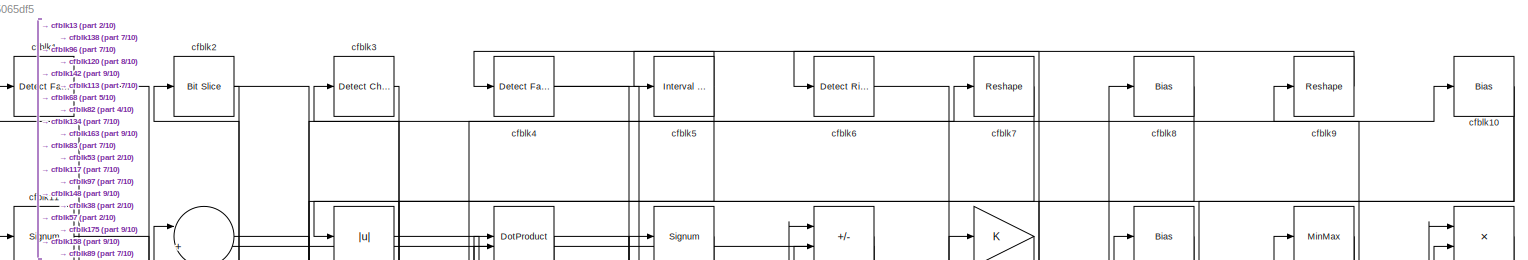
[diagram: root canvas - part 1/10, full width, top band]
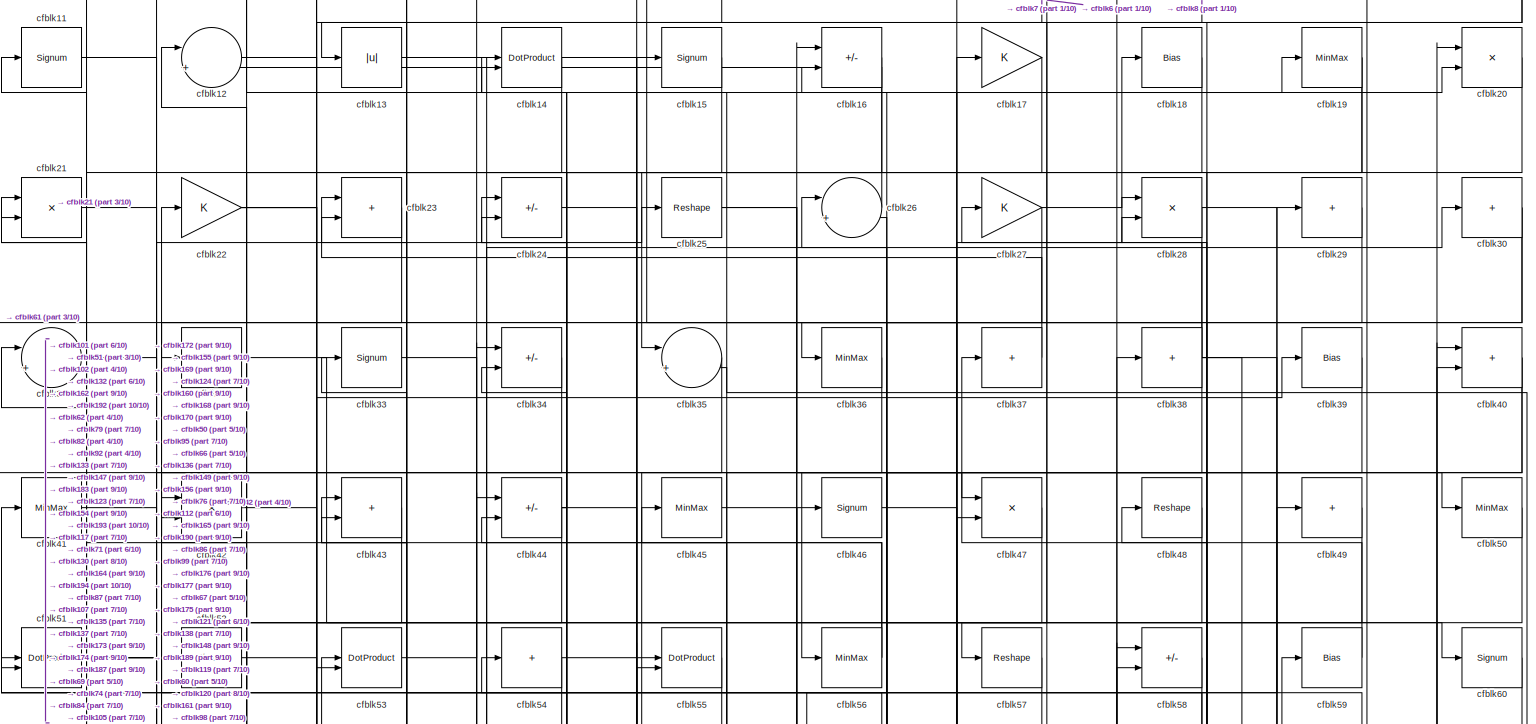
[diagram: root canvas - part 2/10, full width, top band]
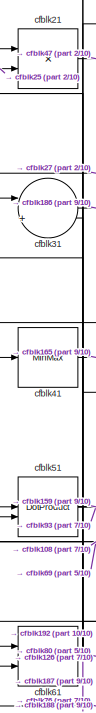
[diagram: root canvas - part 3/10, top left region]
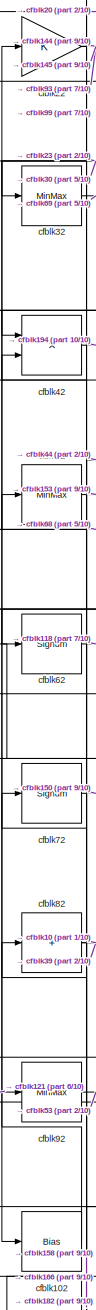
[diagram: root canvas - part 4/10, top left region]
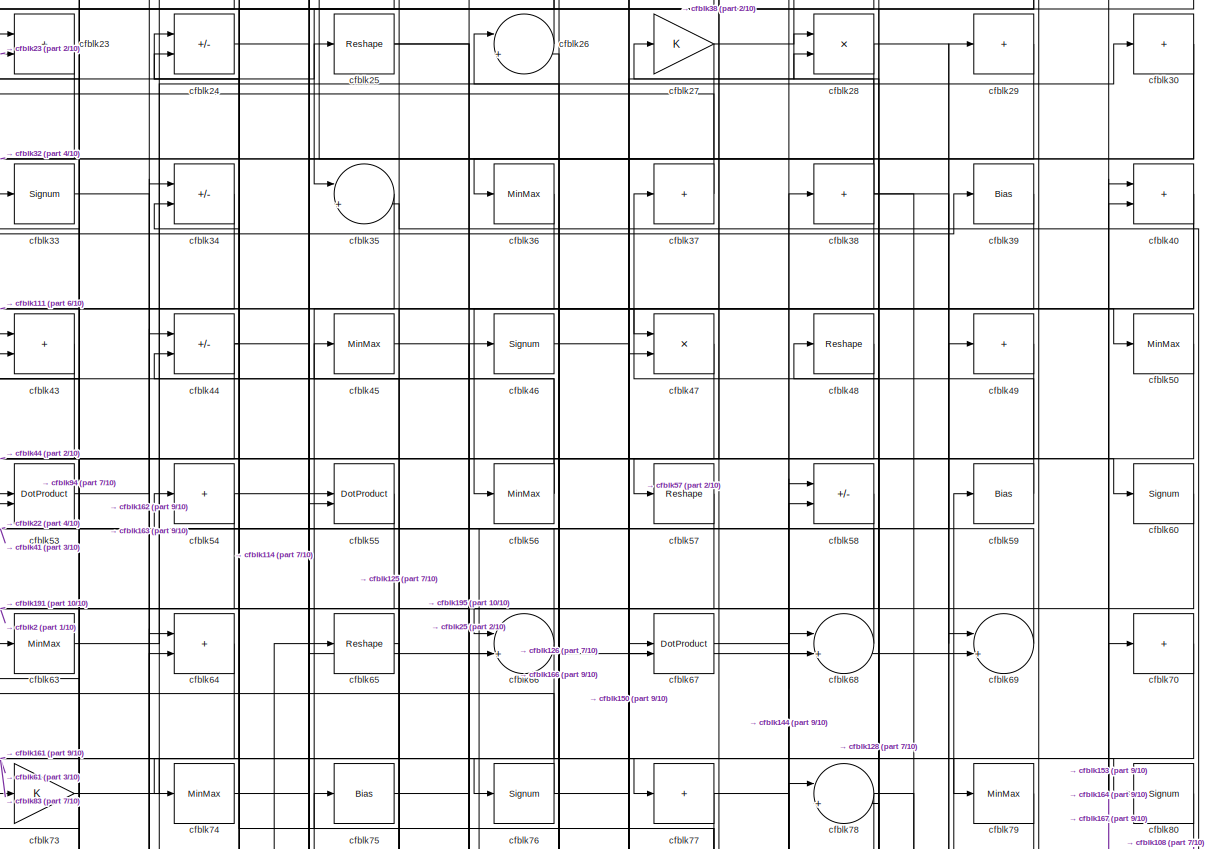
[diagram: root canvas - part 5/10, full width, top band]
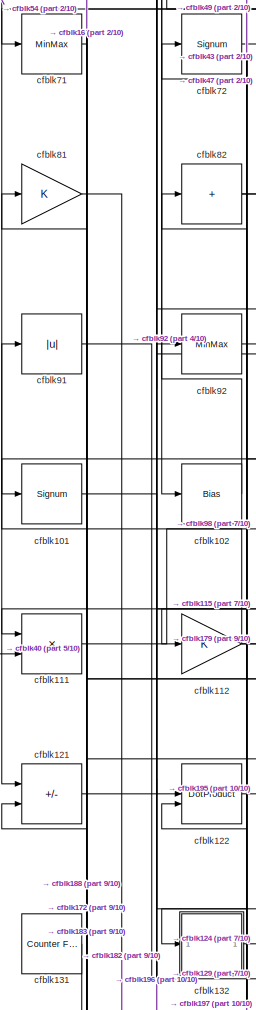
[diagram: root canvas - part 6/10, middle left region]
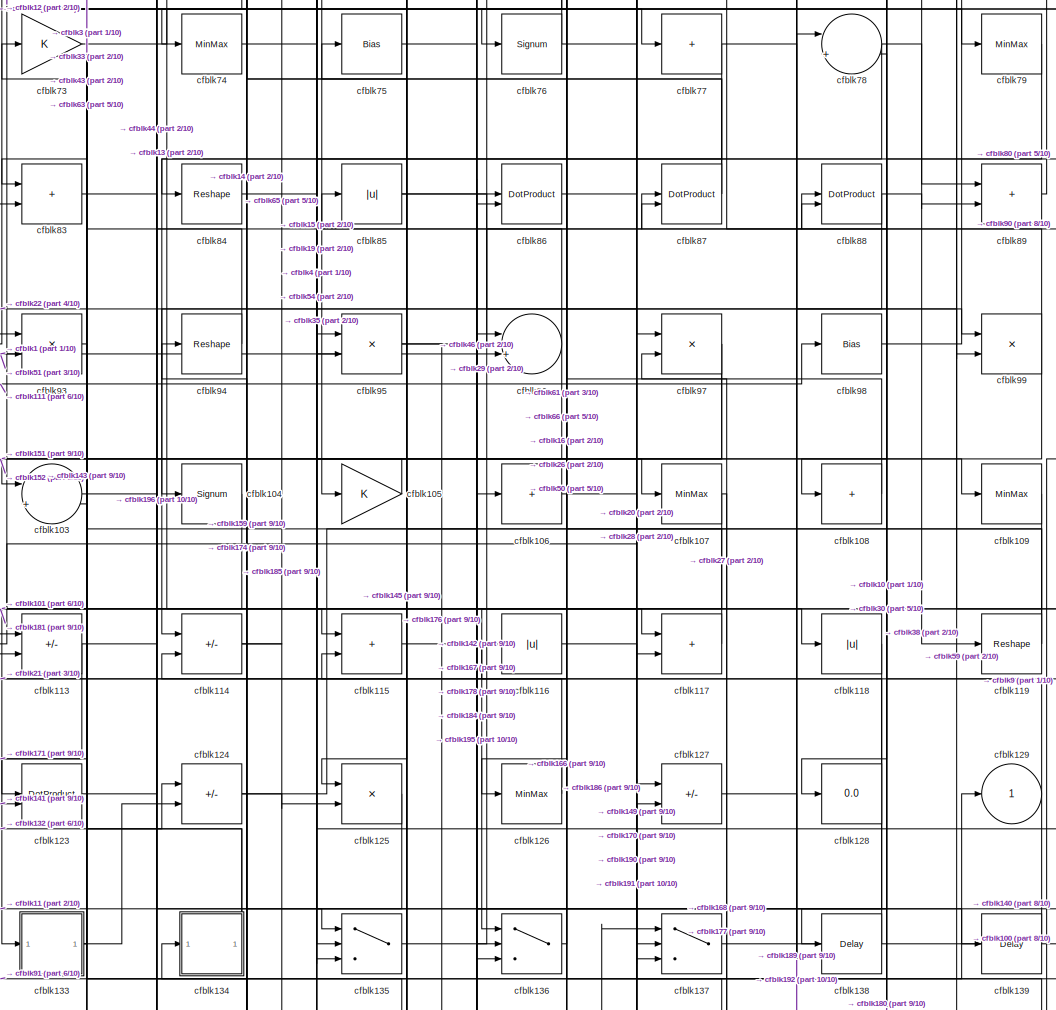
[diagram: root canvas - part 7/10, central region]
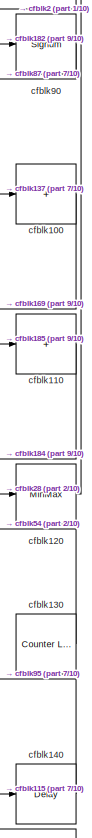
[diagram: root canvas - part 8/10, middle right region]
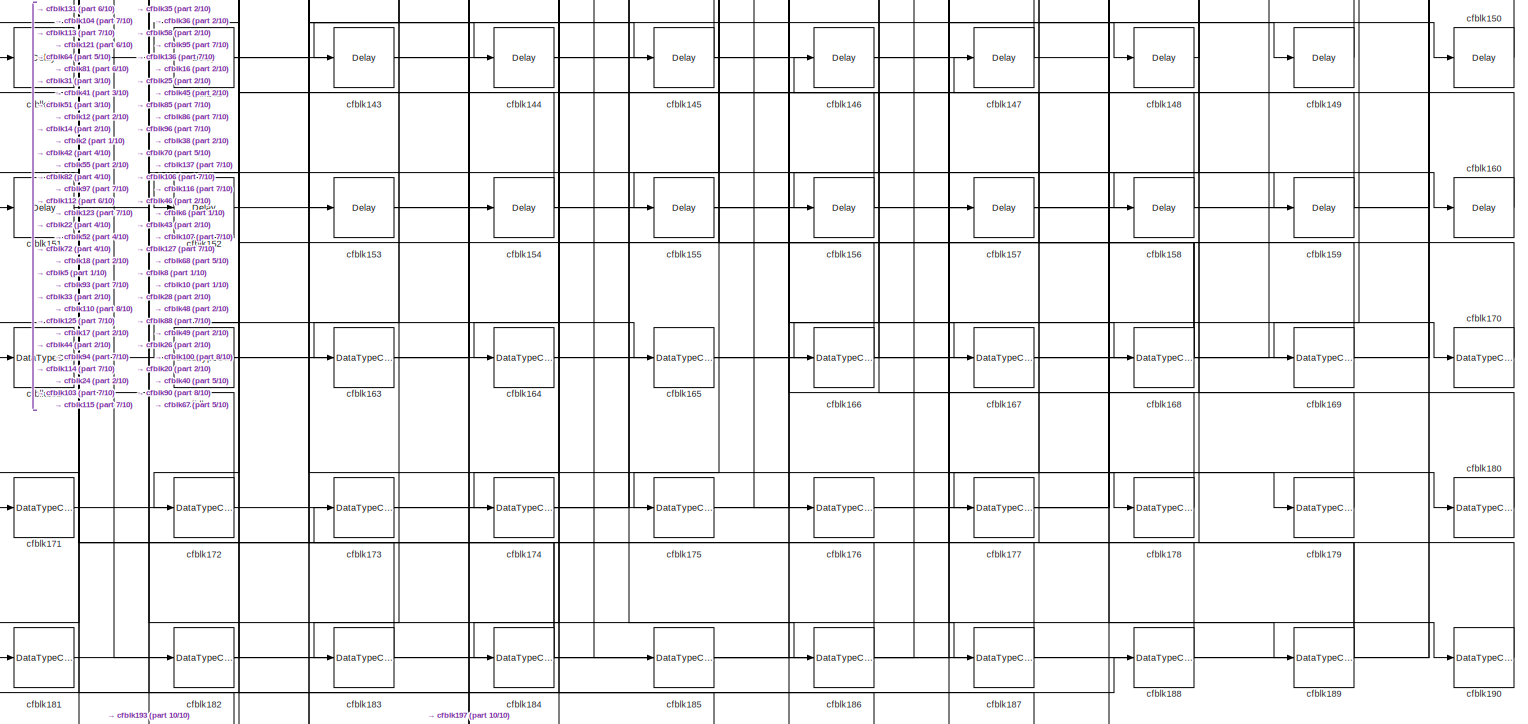
[diagram: root canvas - part 9/10, full width, bottom band]
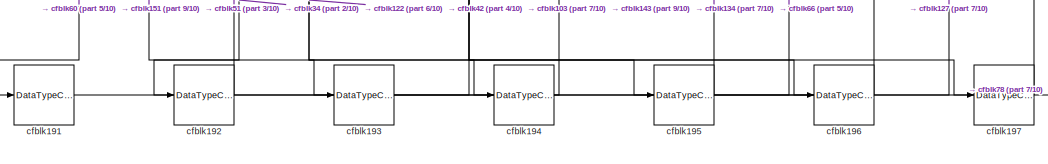
[diagram: root canvas - part 10/10, bottom center region]
MODEL slx_2ca6a5065df5
KIND model
CONFIG AbsTol = auto
CONFIG EnableMultiTasking = off
CONFIG FixedStep = auto
CONFIG MaxStep = auto
CONFIG MinStep = auto
CONFIG RelTol = 1e-3
CONFIG SampleTimeConstraint = Unconstrained
CONFIG SolverName = VariableStepAuto
CONFIG StartTime = 0.0
CONFIG StopTime = 10.0
BLOCK [Reference] cfblk1  REF=hdlsllib/Logic and Bit
Operations/Detect Fall
Negative
  SourceBlock = hdlsllib/Logic and Bit\nOperations/Detect Fall\nNegative
  SourceType = Detect Fall Negative
BLOCK [Bias] cfblk10
  Bias = 0.0
  SaturateOnIntegerOverflow = off
BLOCK [Sum] cfblk100
  IconShape = rectangular
  Inputs = +
BLOCK [Signum] cfblk101
BLOCK [Bias] cfblk102
  Bias = 0.0
  SaturateOnIntegerOverflow = off
BLOCK [Sum] cfblk103
  Inputs = |++
BLOCK [Signum] cfblk104
BLOCK [Gain] cfblk105
BLOCK [Sum] cfblk106
  IconShape = rectangular
  Inputs = +
BLOCK [MinMax] cfblk107
BLOCK [Sum] cfblk108
  IconShape = rectangular
  Inputs = +
BLOCK [MinMax] cfblk109
BLOCK [Signum] cfblk11
BLOCK [Sum] cfblk110
  IconShape = rectangular
  Inputs = +
BLOCK [Product] cfblk111
  Inputs = */
  RndMeth = Zero
  SaturateOnIntegerOverflow = on
BLOCK [Gain] cfblk112
BLOCK [Sum] cfblk113
  IconShape = rectangular
  Inputs = +-
BLOCK [Sum] cfblk114
  IconShape = rectangular
  Inputs = +-
BLOCK [Sum] cfblk115
  IconShape = rectangular
BLOCK [Abs] cfblk116
  SaturateOnIntegerOverflow = off
BLOCK [Sum] cfblk117
  IconShape = rectangular
BLOCK [Abs] cfblk118
  SaturateOnIntegerOverflow = off
BLOCK [Reshape] cfblk119
BLOCK [Sum] cfblk12
  Inputs = |++
BLOCK [MinMax] cfblk120
BLOCK [Sum] cfblk121
  IconShape = rectangular
  Inputs = +-
BLOCK [DotProduct] cfblk122
  OutDataTypeStr = Inherit: Inherit via internal rule
BLOCK [DotProduct] cfblk123
  OutDataTypeStr = Inherit: Inherit via internal rule
BLOCK [Sum] cfblk124
  IconShape = rectangular
  Inputs = +-
BLOCK [Product] cfblk125
  Inputs = */
  RndMeth = Zero
  SaturateOnIntegerOverflow = on
BLOCK [MinMax] cfblk126
BLOCK [Sum] cfblk127
  IconShape = rectangular
  Inputs = +-
BLOCK [Display] cfblk128
  Decimation = 1
BLOCK [Outport] cfblk129
  VectorParamsAs1DForOutWhenUnconnected = off
BLOCK [Abs] cfblk13
  SaturateOnIntegerOverflow = off
BLOCK [Reference] cfblk130  REF=hdlsllib/Sources/Counter
Limited
  SourceBlock = hdlsllib/Sources/Counter\nLimited
  SourceType = Counter Limited
BLOCK [Reference] cfblk131  REF=hdlsllib/Sources/Counter
Free-Running
  SourceBlock = hdlsllib/Sources/Counter\nFree-Running
  SourceType = Counter Free-Running
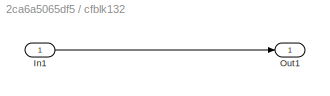
BLOCK [SubSystem] cfblk132
  LibrarySourceBlock = hdlsllib/Ports &\nSubsystems/Subsystem
BLOCK [Inport] cfblk132/In1
BLOCK [Outport] cfblk132/Out1
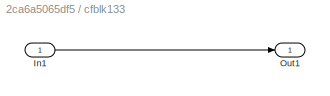
BLOCK [SubSystem] cfblk133
  LibrarySourceBlock = hdlsllib/Ports &\nSubsystems/Subsystem
BLOCK [Inport] cfblk133/In1
BLOCK [Outport] cfblk133/Out1
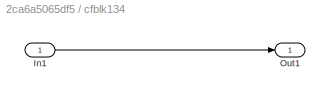
BLOCK [SubSystem] cfblk134
  LibrarySourceBlock = hdlsllib/Ports &\nSubsystems/Subsystem
BLOCK [Inport] cfblk134/In1
BLOCK [Outport] cfblk134/Out1
BLOCK [Switch] cfblk135
  InputSameDT = off
  SaturateOnIntegerOverflow = off
BLOCK [Switch] cfblk136
  InputSameDT = off
  SaturateOnIntegerOverflow = off
BLOCK [Switch] cfblk137
  InputSameDT = off
  SaturateOnIntegerOverflow = off
BLOCK [Delay] cfblk138
  InputPortMap = u0
  SampleTime = 1
BLOCK [Delay] cfblk139
  InputPortMap = u0
  SampleTime = 1
BLOCK [DotProduct] cfblk14
  OutDataTypeStr = Inherit: Inherit via internal rule
BLOCK [Delay] cfblk140
  InputPortMap = u0
  SampleTime = 1
BLOCK [Delay] cfblk141
  InputPortMap = u0
  SampleTime = 1
BLOCK [Delay] cfblk142
  InputPortMap = u0
  SampleTime = 1
BLOCK [Delay] cfblk143
  InputPortMap = u0
  SampleTime = 1
BLOCK [Delay] cfblk144
  InputPortMap = u0
  SampleTime = 1
BLOCK [Delay] cfblk145
  InputPortMap = u0
  SampleTime = 1
BLOCK [Delay] cfblk146
  InputPortMap = u0
  SampleTime = 1
BLOCK [Delay] cfblk147
  InputPortMap = u0
  SampleTime = 1
BLOCK [Delay] cfblk148
  InputPortMap = u0
  SampleTime = 1
BLOCK [Delay] cfblk149
  InputPortMap = u0
  SampleTime = 1
BLOCK [Signum] cfblk15
BLOCK [Delay] cfblk150
  InputPortMap = u0
  SampleTime = 1
BLOCK [Delay] cfblk151
  InputPortMap = u0
  SampleTime = 1
BLOCK [Delay] cfblk152
  InputPortMap = u0
  SampleTime = 1
BLOCK [Delay] cfblk153
  InputPortMap = u0
  SampleTime = 1
BLOCK [Delay] cfblk154
  InputPortMap = u0
  SampleTime = 1
BLOCK [Delay] cfblk155
  InputPortMap = u0
  SampleTime = 1
BLOCK [Delay] cfblk156
  InputPortMap = u0
  SampleTime = 1
BLOCK [Delay] cfblk157
  InputPortMap = u0
  SampleTime = 1
BLOCK [Delay] cfblk158
  InputPortMap = u0
  SampleTime = 1
BLOCK [Delay] cfblk159
  InputPortMap = u0
  SampleTime = 1
BLOCK [Sum] cfblk16
  IconShape = rectangular
  Inputs = +-
BLOCK [Delay] cfblk160
  InputPortMap = u0
  SampleTime = 1
BLOCK [DataTypeConversion] cfblk161
  OutDataTypeStr = uint8
  RndMeth = Floor
  SaturateOnIntegerOverflow = off
BLOCK [DataTypeConversion] cfblk162
  OutDataTypeStr = uint8
  RndMeth = Floor
  SaturateOnIntegerOverflow = off
BLOCK [DataTypeConversion] cfblk163
  OutDataTypeStr = uint8
  RndMeth = Floor
  SaturateOnIntegerOverflow = off
BLOCK [DataTypeConversion] cfblk164
  OutDataTypeStr = uint8
  RndMeth = Floor
  SaturateOnIntegerOverflow = off
BLOCK [DataTypeConversion] cfblk165
  OutDataTypeStr = uint8
  RndMeth = Floor
  SaturateOnIntegerOverflow = off
BLOCK [DataTypeConversion] cfblk166
  RndMeth = Floor
  SaturateOnIntegerOverflow = off
BLOCK [DataTypeConversion] cfblk167
  OutDataTypeStr = uint8
  RndMeth = Floor
  SaturateOnIntegerOverflow = off
BLOCK [DataTypeConversion] cfblk168
  RndMeth = Floor
  SaturateOnIntegerOverflow = off
BLOCK [DataTypeConversion] cfblk169
  OutDataTypeStr = uint8
  RndMeth = Floor
  SaturateOnIntegerOverflow = off
BLOCK [Gain] cfblk17
BLOCK [DataTypeConversion] cfblk170
  OutDataTypeStr = uint8
  RndMeth = Floor
  SaturateOnIntegerOverflow = off
BLOCK [DataTypeConversion] cfblk171
  OutDataTypeStr = uint8
  RndMeth = Floor
  SaturateOnIntegerOverflow = off
BLOCK [DataTypeConversion] cfblk172
  OutDataTypeStr = uint8
  RndMeth = Floor
  SaturateOnIntegerOverflow = off
BLOCK [DataTypeConversion] cfblk173
  OutDataTypeStr = uint8
  RndMeth = Floor
  SaturateOnIntegerOverflow = off
BLOCK [DataTypeConversion] cfblk174
  OutDataTypeStr = uint8
  RndMeth = Floor
  SaturateOnIntegerOverflow = off
BLOCK [DataTypeConversion] cfblk175
  OutDataTypeStr = uint8
  RndMeth = Floor
  SaturateOnIntegerOverflow = off
BLOCK [DataTypeConversion] cfblk176
  OutDataTypeStr = uint8
  RndMeth = Floor
  SaturateOnIntegerOverflow = off
BLOCK [DataTypeConversion] cfblk177
  OutDataTypeStr = uint8
  RndMeth = Floor
  SaturateOnIntegerOverflow = off
BLOCK [DataTypeConversion] cfblk178
  OutDataTypeStr = uint8
  RndMeth = Floor
  SaturateOnIntegerOverflow = off
BLOCK [DataTypeConversion] cfblk179
  OutDataTypeStr = uint8
  RndMeth = Floor
  SaturateOnIntegerOverflow = off
BLOCK [Bias] cfblk18
  Bias = 0.0
  SaturateOnIntegerOverflow = off
BLOCK [DataTypeConversion] cfblk180
  OutDataTypeStr = uint8
  RndMeth = Floor
  SaturateOnIntegerOverflow = off
BLOCK [DataTypeConversion] cfblk181
  OutDataTypeStr = uint8
  RndMeth = Floor
  SaturateOnIntegerOverflow = off
BLOCK [DataTypeConversion] cfblk182
  RndMeth = Floor
  SaturateOnIntegerOverflow = off
BLOCK [DataTypeConversion] cfblk183
  OutDataTypeStr = uint8
  RndMeth = Floor
  SaturateOnIntegerOverflow = off
BLOCK [DataTypeConversion] cfblk184
  RndMeth = Floor
  SaturateOnIntegerOverflow = off
BLOCK [DataTypeConversion] cfblk185
  OutDataTypeStr = uint8
  RndMeth = Floor
  SaturateOnIntegerOverflow = off
BLOCK [DataTypeConversion] cfblk186
  RndMeth = Floor
  SaturateOnIntegerOverflow = off
BLOCK [DataTypeConversion] cfblk187
  OutDataTypeStr = uint8
  RndMeth = Floor
  SaturateOnIntegerOverflow = off
BLOCK [DataTypeConversion] cfblk188
  OutDataTypeStr = uint8
  RndMeth = Floor
  SaturateOnIntegerOverflow = off
BLOCK [DataTypeConversion] cfblk189
  RndMeth = Floor
  SaturateOnIntegerOverflow = off
BLOCK [MinMax] cfblk19
BLOCK [DataTypeConversion] cfblk190
  OutDataTypeStr = uint8
  RndMeth = Floor
  SaturateOnIntegerOverflow = off
BLOCK [DataTypeConversion] cfblk191
  OutDataTypeStr = uint8
  RndMeth = Floor
  SaturateOnIntegerOverflow = off
BLOCK [DataTypeConversion] cfblk192
  RndMeth = Floor
  SaturateOnIntegerOverflow = off
BLOCK [DataTypeConversion] cfblk193
  OutDataTypeStr = uint8
  RndMeth = Floor
  SaturateOnIntegerOverflow = off
BLOCK [DataTypeConversion] cfblk194
  OutDataTypeStr = uint8
  RndMeth = Floor
  SaturateOnIntegerOverflow = off
BLOCK [DataTypeConversion] cfblk195
  RndMeth = Floor
  SaturateOnIntegerOverflow = off
BLOCK [DataTypeConversion] cfblk196
  OutDataTypeStr = uint8
  RndMeth = Floor
  SaturateOnIntegerOverflow = off
BLOCK [DataTypeConversion] cfblk197
  OutDataTypeStr = uint8
  RndMeth = Floor
  SaturateOnIntegerOverflow = off
BLOCK [Reference] cfblk2  REF=hdlsllib/Logic and Bit
Operations/Bit Slice
  SourceBlock = hdlsllib/Logic and Bit\nOperations/Bit Slice
  SourceType = Bit Slice
BLOCK [Product] cfblk20
  Inputs = */
  RndMeth = Zero
  SaturateOnIntegerOverflow = on
BLOCK [Product] cfblk21
  Inputs = */
  RndMeth = Zero
  SaturateOnIntegerOverflow = on
BLOCK [Gain] cfblk22
BLOCK [Sum] cfblk23
  IconShape = rectangular
BLOCK [Sum] cfblk24
  IconShape = rectangular
  Inputs = +-
BLOCK [Reshape] cfblk25
BLOCK [Sum] cfblk26
  Inputs = |++
BLOCK [Gain] cfblk27
BLOCK [Product] cfblk28
  Inputs = */
  RndMeth = Zero
  SaturateOnIntegerOverflow = on
BLOCK [Sum] cfblk29
  IconShape = rectangular
  Inputs = +
BLOCK [Reference] cfblk3  REF=simulink/Logic and Bit
Operations/Detect
Change
  LibrarySourceBlock = hdlsllib/Logic and Bit\nOperations/Detect\nChange
  SourceBlock = simulink/Logic and Bit\nOperations/Detect\nChange
  SourceType = Detect Change
BLOCK [Sum] cfblk30
  IconShape = rectangular
  Inputs = +
BLOCK [Sum] cfblk31
  Inputs = |++
BLOCK [MinMax] cfblk32
BLOCK [Signum] cfblk33
BLOCK [Sum] cfblk34
  IconShape = rectangular
  Inputs = +-
BLOCK [Sum] cfblk35
  Inputs = |++
BLOCK [MinMax] cfblk36
BLOCK [Sum] cfblk37
  IconShape = rectangular
  Inputs = +
BLOCK [Sum] cfblk38
  IconShape = rectangular
  Inputs = +
BLOCK [Bias] cfblk39
  Bias = 0.0
  SaturateOnIntegerOverflow = off
BLOCK [Reference] cfblk4  REF=hdlsllib/Logic and Bit
Operations/Detect Fall
Negative
  SourceBlock = hdlsllib/Logic and Bit\nOperations/Detect Fall\nNegative
  SourceType = Detect Fall Negative
BLOCK [Sum] cfblk40
  IconShape = rectangular
BLOCK [MinMax] cfblk41
BLOCK [Product] cfblk42
  Inputs = */
  RndMeth = Zero
  SaturateOnIntegerOverflow = on
BLOCK [Sum] cfblk43
  IconShape = rectangular
BLOCK [Sum] cfblk44
  IconShape = rectangular
  Inputs = +-
BLOCK [MinMax] cfblk45
BLOCK [Signum] cfblk46
BLOCK [Product] cfblk47
  Inputs = */
  RndMeth = Zero
  SaturateOnIntegerOverflow = on
BLOCK [Reshape] cfblk48
BLOCK [Sum] cfblk49
  IconShape = rectangular
  Inputs = +
BLOCK [Reference] cfblk5  REF=hdlsllib/Logic and Bit
Operations/Interval Test
  SourceBlock = hdlsllib/Logic and Bit\nOperations/Interval Test
  SourceType = Interval Test
BLOCK [MinMax] cfblk50
BLOCK [DotProduct] cfblk51
  OutDataTypeStr = Inherit: Inherit via internal rule
BLOCK [MinMax] cfblk52
BLOCK [DotProduct] cfblk53
  OutDataTypeStr = Inherit: Inherit via internal rule
BLOCK [Sum] cfblk54
  IconShape = rectangular
  Inputs = +
BLOCK [DotProduct] cfblk55
  OutDataTypeStr = Inherit: Inherit via internal rule
BLOCK [MinMax] cfblk56
BLOCK [Reshape] cfblk57
BLOCK [Sum] cfblk58
  IconShape = rectangular
  Inputs = +-
BLOCK [Bias] cfblk59
  Bias = 0.0
  SaturateOnIntegerOverflow = off
BLOCK [Reference] cfblk6  REF=hdlsllib/Logic and Bit
Operations/Detect Rise
Positive
  SourceBlock = hdlsllib/Logic and Bit\nOperations/Detect Rise\nPositive
  SourceType = Detect Rise Positive
BLOCK [Signum] cfblk60
BLOCK [Product] cfblk61
  Inputs = */
  RndMeth = Zero
  SaturateOnIntegerOverflow = on
BLOCK [Signum] cfblk62
BLOCK [MinMax] cfblk63
BLOCK [Sum] cfblk64
  IconShape = rectangular
BLOCK [Reshape] cfblk65
BLOCK [Sum] cfblk66
  Inputs = |++
BLOCK [DotProduct] cfblk67
  OutDataTypeStr = Inherit: Inherit via internal rule
BLOCK [Sum] cfblk68
  Inputs = |++
BLOCK [Sum] cfblk69
  Inputs = |++
BLOCK [Reshape] cfblk7
BLOCK [Sum] cfblk70
  IconShape = rectangular
  Inputs = +
BLOCK [MinMax] cfblk71
BLOCK [Signum] cfblk72
BLOCK [Gain] cfblk73
BLOCK [MinMax] cfblk74
BLOCK [Bias] cfblk75
  Bias = 0.0
  SaturateOnIntegerOverflow = off
BLOCK [Signum] cfblk76
BLOCK [Sum] cfblk77
  IconShape = rectangular
  Inputs = +
BLOCK [Sum] cfblk78
  Inputs = |++
BLOCK [MinMax] cfblk79
BLOCK [Bias] cfblk8
  Bias = 0.0
  SaturateOnIntegerOverflow = off
BLOCK [Signum] cfblk80
BLOCK [Gain] cfblk81
BLOCK [Sum] cfblk82
  IconShape = rectangular
  Inputs = +
BLOCK [Sum] cfblk83
  IconShape = rectangular
BLOCK [Reshape] cfblk84
BLOCK [Abs] cfblk85
  SaturateOnIntegerOverflow = off
BLOCK [DotProduct] cfblk86
  OutDataTypeStr = Inherit: Inherit via internal rule
BLOCK [DotProduct] cfblk87
  OutDataTypeStr = Inherit: Inherit via internal rule
BLOCK [DotProduct] cfblk88
  OutDataTypeStr = Inherit: Inherit via internal rule
BLOCK [Sum] cfblk89
  IconShape = rectangular
BLOCK [Reshape] cfblk9
BLOCK [Signum] cfblk90
BLOCK [Abs] cfblk91
  SaturateOnIntegerOverflow = off
BLOCK [MinMax] cfblk92
BLOCK [Product] cfblk93
  Inputs = */
  RndMeth = Zero
  SaturateOnIntegerOverflow = on
BLOCK [Reshape] cfblk94
BLOCK [Product] cfblk95
  Inputs = */
  RndMeth = Zero
  SaturateOnIntegerOverflow = on
BLOCK [Sum] cfblk96
  Inputs = |++
BLOCK [Product] cfblk97
  Inputs = */
  RndMeth = Zero
  SaturateOnIntegerOverflow = on
BLOCK [Bias] cfblk98
  Bias = 0.0
  SaturateOnIntegerOverflow = off
BLOCK [Product] cfblk99
  Inputs = */
  RndMeth = Zero
  SaturateOnIntegerOverflow = on
LINE cfblk100:1 -> cfblk169:1
LINE cfblk101:1 -> cfblk115:1
LINE cfblk102:1 -> cfblk52:1
LINE cfblk103:1 -> cfblk196:1
LINE cfblk104:1 -> cfblk181:1
LINE cfblk105:1 -> cfblk103:1
LINE cfblk106:1 -> cfblk170:1
NET cfblk107:1 -> cfblk133:1, cfblk177:1
LINE cfblk108:1 -> cfblk51:1
LINE cfblk109:1 -> cfblk136:1
NET cfblk10:1 -> cfblk113:2, cfblk158:1
LINE cfblk110:1 -> cfblk184:1
LINE cfblk111:1 -> cfblk98:1
NET cfblk112:1 -> cfblk179:1, cfblk47:2, cfblk91:1
NET cfblk113:1 -> cfblk171:1, cfblk87:1
NET cfblk114:1 -> cfblk185:1, cfblk65:1
LINE cfblk115:1 -> cfblk140:1
LINE cfblk116:1 -> cfblk149:1
LINE cfblk117:1 -> cfblk16:2
LINE cfblk118:1 -> cfblk136:2
NET cfblk119:1 -> cfblk33:1, cfblk85:1
LINE cfblk11:1 -> cfblk135:1
LINE cfblk120:1 -> cfblk2:1
LINE cfblk121:1 -> cfblk92:1
LINE cfblk122:1 -> cfblk195:1
LINE cfblk123:1 -> cfblk44:1
NET cfblk124:1 -> cfblk125:2, cfblk46:1
LINE cfblk125:1 -> cfblk174:1
LINE cfblk126:1 -> cfblk21:1
LINE cfblk127:1 -> cfblk189:1
LINE cfblk12:1 -> cfblk79:1
LINE cfblk130:1 -> cfblk54:1
LINE cfblk131:1 -> cfblk188:1
LINE cfblk132/In1:1 -> cfblk132/Out1:1
LINE cfblk132:1 -> cfblk124:1
LINE cfblk133/In1:1 -> cfblk133/Out1:1
NET cfblk133:1 -> cfblk124:2, cfblk43:1
LINE cfblk134/In1:1 -> cfblk134/Out1:1
NET cfblk134:1 -> cfblk3:1, cfblk73:1
LINE cfblk135:1 -> cfblk88:1
LINE cfblk136:1 -> cfblk26:1
LINE cfblk137:1 -> cfblk100:1
LINE cfblk138:1 -> cfblk1:1
LINE cfblk139:1 -> cfblk78:2
LINE cfblk13:1 -> cfblk117:1
LINE cfblk140:1 -> cfblk95:1
LINE cfblk141:1 -> cfblk123:2
LINE cfblk142:1 -> cfblk96:1
LINE cfblk143:1 -> cfblk197:1
LINE cfblk144:1 -> cfblk68:1
LINE cfblk145:1 -> cfblk103:2
LINE cfblk146:1 -> cfblk178:1
LINE cfblk147:1 -> cfblk43:2
LINE cfblk148:1 -> cfblk28:2
LINE cfblk149:1 -> cfblk26:2
NET cfblk14:1 -> cfblk107:1, cfblk162:1
LINE cfblk150:1 -> cfblk67:1
LINE cfblk151:1 -> cfblk193:1
LINE cfblk152:1 -> cfblk136:3
LINE cfblk153:1 -> cfblk40:1
LINE cfblk154:1 -> cfblk12:1
LINE cfblk155:1 -> cfblk20:1
LINE cfblk156:1 -> cfblk35:2
LINE cfblk157:1 -> cfblk180:1
LINE cfblk158:1 -> cfblk42:2
LINE cfblk159:1 -> cfblk114:2
LINE cfblk15:1 -> cfblk35:1
LINE cfblk160:1 -> cfblk44:2
LINE cfblk161:1 -> cfblk49:1
LINE cfblk162:1 -> cfblk64:1
LINE cfblk163:1 -> cfblk64:2
LINE cfblk164:1 -> cfblk40:2
LINE cfblk165:1 -> cfblk17:1
NET cfblk166:1 -> cfblk116:1, cfblk72:1
LINE cfblk167:1 -> cfblk70:1
NET cfblk168:1 -> cfblk115:2, cfblk94:1, cfblk97:2
LINE cfblk169:1 -> cfblk45:1
LINE cfblk16:1 -> cfblk101:1
LINE cfblk170:1 -> cfblk16:1
LINE cfblk171:1 -> cfblk106:1
LINE cfblk172:1 -> cfblk121:2
LINE cfblk173:1 -> cfblk55:1
LINE cfblk174:1 -> cfblk55:2
LINE cfblk175:1 -> cfblk8:1
LINE cfblk176:1 -> cfblk58:1
LINE cfblk177:1 -> cfblk58:2
LINE cfblk178:1 -> cfblk86:1
LINE cfblk179:1 -> cfblk146:1
LINE cfblk17:1 -> cfblk164:1
LINE cfblk180:1 -> cfblk88:2
LINE cfblk181:1 -> cfblk157:1
NET cfblk182:1 -> cfblk82:1, cfblk90:1
LINE cfblk183:1 -> cfblk81:1
NET cfblk184:1 -> cfblk141:1, cfblk173:1, cfblk86:2
LINE cfblk185:1 -> cfblk110:1
NET cfblk186:1 -> cfblk113:1, cfblk137:1
LINE cfblk187:1 -> cfblk31:1
LINE cfblk188:1 -> cfblk31:2
NET cfblk189:1 -> cfblk147:1, cfblk48:1
LINE cfblk18:1 -> cfblk183:1
LINE cfblk190:1 -> cfblk127:1
LINE cfblk191:1 -> cfblk127:2
NET cfblk192:1 -> cfblk51:2, cfblk78:1
LINE cfblk193:1 -> cfblk34:1
LINE cfblk194:1 -> cfblk34:2
NET cfblk195:1 -> cfblk134:1, cfblk66:2
LINE cfblk196:1 -> cfblk122:1
LINE cfblk197:1 -> cfblk122:2
NET cfblk19:1 -> cfblk138:1, cfblk74:1
LINE cfblk1:1 -> cfblk96:2
LINE cfblk20:1 -> cfblk42:1
LINE cfblk21:1 -> cfblk47:1
NET cfblk22:1 -> cfblk144:1, cfblk145:1, cfblk93:1, cfblk99:2
LINE cfblk23:1 -> cfblk102:1
LINE cfblk24:1 -> cfblk187:1
NET cfblk25:1 -> cfblk160:1, cfblk50:1
LINE cfblk26:1 -> cfblk12:2
NET cfblk27:1 -> cfblk18:1, cfblk61:2
NET cfblk28:1 -> cfblk120:1, cfblk135:2
LINE cfblk29:1 -> cfblk76:1
NET cfblk2:1 -> cfblk142:1, cfblk68:2
NET cfblk30:1 -> cfblk128:1, cfblk32:1
LINE cfblk31:1 -> cfblk186:1
LINE cfblk32:1 -> cfblk69:1
LINE cfblk33:1 -> cfblk154:1
LINE cfblk34:1 -> cfblk192:1
LINE cfblk35:1 -> cfblk105:1
LINE cfblk36:1 -> cfblk155:1
LINE cfblk37:1 -> cfblk23:1
NET cfblk38:1 -> cfblk119:1, cfblk156:1, cfblk36:1, cfblk60:1, cfblk6:1
LINE cfblk39:1 -> cfblk56:1
LINE cfblk3:1 -> cfblk83:1
NET cfblk40:1 -> cfblk111:2, cfblk66:1
LINE cfblk41:1 -> cfblk165:1
LINE cfblk42:1 -> cfblk194:1
LINE cfblk43:1 -> cfblk112:1
NET cfblk44:1 -> cfblk24:1, cfblk62:1, cfblk69:2
LINE cfblk45:1 -> cfblk168:1
LINE cfblk46:1 -> cfblk190:1
LINE cfblk47:1 -> cfblk132:1
LINE cfblk48:1 -> cfblk53:2
LINE cfblk49:1 -> cfblk121:1
NET cfblk4:1 -> cfblk117:2, cfblk97:1
LINE cfblk50:1 -> cfblk126:1
NET cfblk51:1 -> cfblk159:1, cfblk21:2, cfblk25:1, cfblk93:2
LINE cfblk52:1 -> cfblk153:1
LINE cfblk53:1 -> cfblk7:1
NET cfblk54:1 -> cfblk137:3, cfblk71:1
LINE cfblk55:1 -> cfblk172:1
NET cfblk56:1 -> cfblk11:1, cfblk24:2
LINE cfblk57:1 -> cfblk67:2
LINE cfblk58:1 -> cfblk175:1
LINE cfblk59:1 -> cfblk37:1
NET cfblk5:1 -> cfblk163:1, cfblk4:1
LINE cfblk60:1 -> cfblk191:1
LINE cfblk61:1 -> cfblk80:1
LINE cfblk62:1 -> cfblk118:1
LINE cfblk63:1 -> cfblk30:1
LINE cfblk64:1 -> cfblk161:1
LINE cfblk65:1 -> cfblk125:1
NET cfblk66:1 -> cfblk23:2, cfblk83:2
LINE cfblk67:1 -> cfblk38:1
LINE cfblk68:1 -> cfblk22:1
LINE cfblk69:1 -> cfblk41:1
LINE cfblk6:1 -> cfblk148:1
LINE cfblk70:1 -> cfblk166:1
LINE cfblk71:1 -> cfblk111:1
LINE cfblk72:1 -> cfblk150:1
LINE cfblk73:1 -> cfblk77:1
LINE cfblk74:1 -> cfblk15:1
LINE cfblk75:1 -> cfblk109:1
NET cfblk76:1 -> cfblk20:2, cfblk61:1
NET cfblk77:1 -> cfblk114:1, cfblk99:1
NET cfblk78:1 -> cfblk84:1, cfblk89:1
LINE cfblk79:1 -> cfblk95:2
LINE cfblk7:1 -> cfblk13:1
LINE cfblk80:1 -> cfblk108:1
LINE cfblk81:1 -> cfblk182:1
NET cfblk82:1 -> cfblk10:1, cfblk39:1
LINE cfblk83:1 -> cfblk139:1
LINE cfblk84:1 -> cfblk19:1
NET cfblk85:1 -> cfblk137:2, cfblk167:1
LINE cfblk86:1 -> cfblk28:1
NET cfblk87:1 -> cfblk14:1, cfblk14:2
NET cfblk88:1 -> cfblk104:1, cfblk89:2
LINE cfblk89:1 -> cfblk9:1
LINE cfblk8:1 -> cfblk57:1
LINE cfblk90:1 -> cfblk87:2
LINE cfblk91:1 -> cfblk129:1
LINE cfblk92:1 -> cfblk53:1
LINE cfblk93:1 -> cfblk143:1
LINE cfblk94:1 -> cfblk63:1
NET cfblk95:1 -> cfblk176:1, cfblk29:1
NET cfblk96:1 -> cfblk123:1, cfblk75:1
NET cfblk97:1 -> cfblk151:1, cfblk152:1
LINE cfblk98:1 -> cfblk59:1
NET cfblk99:1 -> cfblk135:3, cfblk27:1
LINE cfblk9:1 -> cfblk5:1
note: NET lines group one-source signal fan-out (src -> all destinations, sorted); 1:1 wires keep LINE
